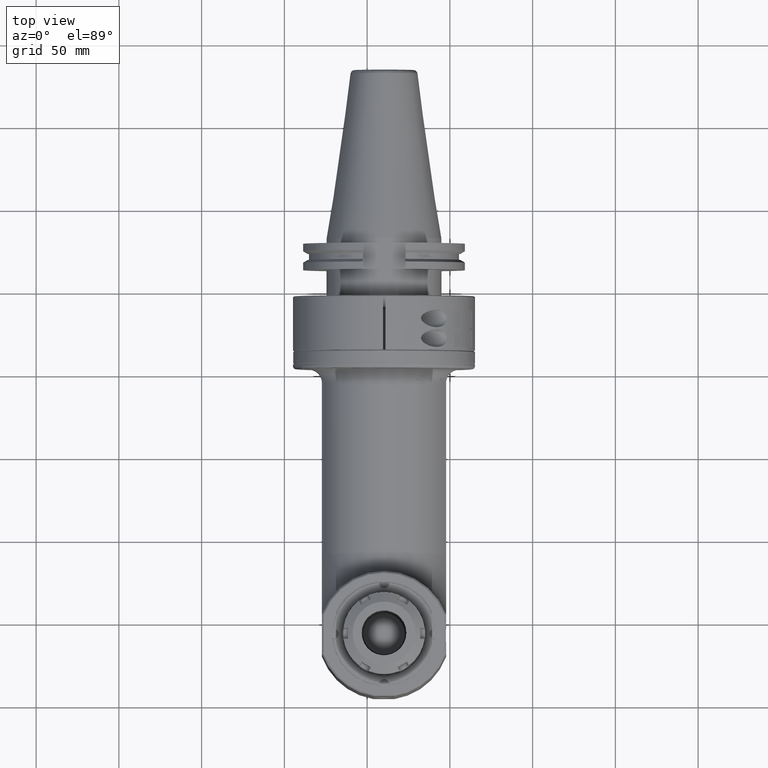
[diagram: clean part render]
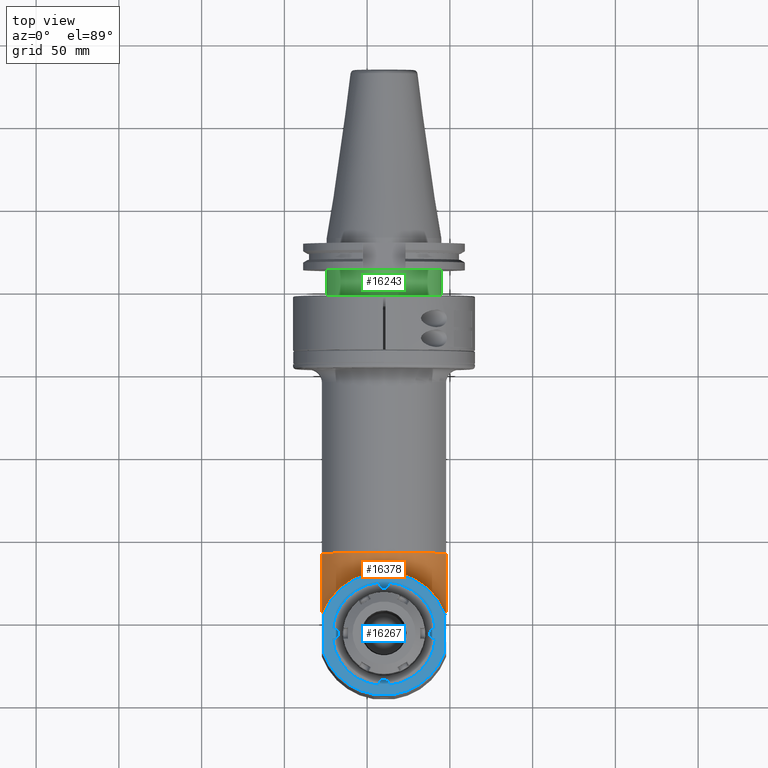
[diagram: same view with three faces highlighted in distinct colors, each labeled with its STEP entity id]
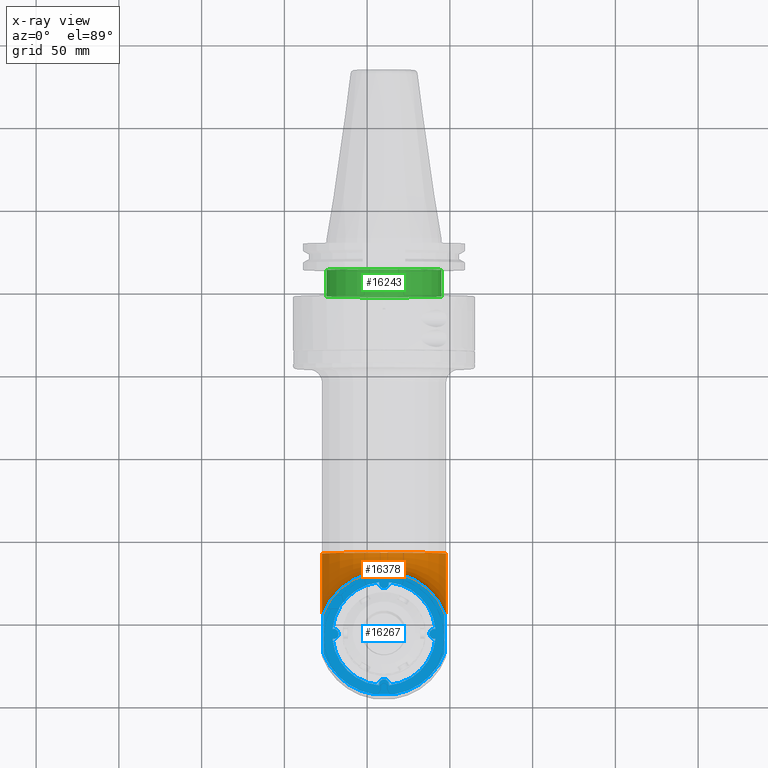
[diagram: x-ray of the same camera — body ghosted, the three highlighted faces saturated]
A machine part, top view with three faces highlighted in distinct colors.
The next image is the same camera in x-ray (body ghosted, the three faces saturated) — at least one of them is partly hidden behind the body in this view.
Their STEP definitions:

[orange] entity #16378 — the highlighted toroidal blend (fillet) surface has major radius 51.5 mm and minor (blend) radius 40 mm.
#126=TOROIDAL_SURFACE('',#17920,51.5,40.);
#1182=CIRCLE('',#17658,37.58058909292);
#1320=CIRCLE('',#17917,37.58058909292);
#1321=CIRCLE('',#17919,40.);
#1322=CIRCLE('',#17921,40.);
#2292=FACE_OUTER_BOUND('',#3293,.T.);
#3293=EDGE_LOOP('',(#13397,#13398,#13399,#13400));
#7144=VERTEX_POINT('',#26812);
#7145=VERTEX_POINT('',#26814);
#7352=VERTEX_POINT('',#27790);
#7353=VERTEX_POINT('',#27792);
#9165=EDGE_CURVE('',#7145,#7144,#1182,.T.);
#9469=EDGE_CURVE('',#7352,#7353,#1320,.T.);
#9479=EDGE_CURVE('',#7144,#7353,#1321,.T.);
#9480=EDGE_CURVE('',#7352,#7145,#1322,.T.);
#13397=ORIENTED_EDGE('',*,*,#9469,.F.);
#13398=ORIENTED_EDGE('',*,*,#9480,.T.);
#13399=ORIENTED_EDGE('',*,*,#9165,.T.);
#13400=ORIENTED_EDGE('',*,*,#9479,.T.);
#16378=ADVANCED_FACE('',(#2292),#126,.T.);
#17658=AXIS2_PLACEMENT_3D('',#26815,#20883,#20884);
#17917=AXIS2_PLACEMENT_3D('',#27793,#21532,#21533);
#17919=AXIS2_PLACEMENT_3D('',#27812,#21545,#21546);
#17920=AXIS2_PLACEMENT_3D('',#27813,#21547,#21548);
#17921=AXIS2_PLACEMENT_3D('',#27814,#21549,#21550);
#20883=DIRECTION('center_axis',(-1.,0.,0.));
#20884=DIRECTION('ref_axis',(0.,-2.609190007438E-14,-1.));
#21532=DIRECTION('center_axis',(-1.,0.,0.));
#21533=DIRECTION('ref_axis',(0.,0.,-1.));
#21545=DIRECTION('center_axis',(0.,0.,-1.));
#21546=DIRECTION('ref_axis',(-0.937499999999992,0.347985272676897,0.));
#21547=DIRECTION('center_axis',(-1.,0.,0.));
#21548=DIRECTION('ref_axis',(0.,1.,0.));
#21549=DIRECTION('center_axis',(0.,-1.,0.));
#21550=DIRECTION('ref_axis',(0.937499999999992,0.,0.347985272676897));
#26812=CARTESIAN_POINT('',(-37.5,11.91941090708,51.5));
#26814=CARTESIAN_POINT('',(-37.5,49.5,13.91941090708));
#26815=CARTESIAN_POINT('Origin',(-37.5,49.5,51.5));
#27790=CARTESIAN_POINT('',(37.5,49.5,13.91941090708));
#27792=CARTESIAN_POINT('',(37.5,11.91941090708,51.5));
#27793=CARTESIAN_POINT('Origin',(37.5,49.5,51.5));
#27812=CARTESIAN_POINT('Origin',(0.,-2.,51.5));
#27813=CARTESIAN_POINT('Origin',(0.,49.5,51.5));
#27814=CARTESIAN_POINT('Origin',(0.,49.5,0.));

[blue] entity #16267 — the highlighted planar face has unit normal (0, -0, 1).
#173=FACE_BOUND('',#3157,.T.);
#1184=CIRCLE('',#17662,38.99998535825);
#1186=CIRCLE('',#17665,38.99995481606);
#1187=CIRCLE('',#17666,38.99992611652);
#1188=CIRCLE('',#17667,31.25);
#1189=CIRCLE('',#17668,3.);
#1190=CIRCLE('',#17669,31.25);
#1191=CIRCLE('',#17670,3.);
#1192=CIRCLE('',#17671,31.25);
#1193=CIRCLE('',#17672,3.);
#1194=CIRCLE('',#17673,31.25);
#1195=CIRCLE('',#17674,3.);
#2181=FACE_OUTER_BOUND('',#3156,.T.);
#3156=EDGE_LOOP('',(#12824,#12825,#12826,#12827,#12828,#12829));
#3157=EDGE_LOOP('',(#12830,#12831,#12832,#12833,#12834,#12835,#12836,#12837,
#12838,#12839,#12840,#12841,#12842,#12843,#12844,#12845));
#4414=LINE('',#26830,#5736);
#4415=LINE('',#26844,#5737);
#4416=LINE('',#26848,#5738);
#4417=LINE('',#26854,#5739);
#4418=LINE('',#26858,#5740);
#4419=LINE('',#26862,#5741);
#4420=LINE('',#26866,#5742);
#4421=LINE('',#26870,#5743);
#4422=LINE('',#26874,#5744);
#4423=LINE('',#26878,#5745);
#4424=LINE('',#26881,#5746);
#5736=VECTOR('',#20893,10.);
#5737=VECTOR('',#20902,10.);
#5738=VECTOR('',#20905,10.);
#5739=VECTOR('',#20910,0.3126509297359);
#5740=VECTOR('',#20913,0.3126509297359);
#5741=VECTOR('',#20916,0.3126509297359);
#5742=VECTOR('',#20919,0.3126509297359);
#5743=VECTOR('',#20922,0.3126509297359);
#5744=VECTOR('',#20925,0.3126509297359);
#5745=VECTOR('',#20928,0.3126509297359);
#5746=VECTOR('',#20931,0.3126509297359);
#7149=VERTEX_POINT('',#26825);
#7150=VERTEX_POINT('',#26829);
#7151=VERTEX_POINT('',#26835);
#7153=VERTEX_POINT('',#26843);
#7154=VERTEX_POINT('',#26845);
#7155=VERTEX_POINT('',#26847);
#7156=VERTEX_POINT('',#26850);
#7157=VERTEX_POINT('',#26851);
#7158=VERTEX_POINT('',#26853);
#7159=VERTEX_POINT('',#26855);
#7160=VERTEX_POINT('',#26857);
#7161=VERTEX_POINT('',#26859);
#7162=VERTEX_POINT('',#26861);
#7163=VERTEX_POINT('',#26863);
#7164=VERTEX_POINT('',#26865);
#7165=VERTEX_POINT('',#26867);
#7166=VERTEX_POINT('',#26869);
#7167=VERTEX_POINT('',#26871);
#7168=VERTEX_POINT('',#26873);
#7169=VERTEX_POINT('',#26875);
#7170=VERTEX_POINT('',#26877);
#7171=VERTEX_POINT('',#26879);
#9172=EDGE_CURVE('',#7150,#7149,#4414,.T.);
#9174=EDGE_CURVE('',#7151,#7150,#1184,.T.);
#9177=EDGE_CURVE('',#7153,#7151,#4415,.T.);
#9178=EDGE_CURVE('',#7149,#7154,#1186,.T.);
#9179=EDGE_CURVE('',#7154,#7155,#4416,.T.);
#9180=EDGE_CURVE('',#7155,#7153,#1187,.T.);
#9181=EDGE_CURVE('',#7156,#7157,#1188,.T.);
#9182=EDGE_CURVE('',#7156,#7158,#4417,.T.);
#9183=EDGE_CURVE('',#7158,#7159,#1189,.T.);
#9184=EDGE_CURVE('',#7160,#7159,#4418,.T.);
#9185=EDGE_CURVE('',#7161,#7160,#1190,.T.);
#9186=EDGE_CURVE('',#7161,#7162,#4419,.T.);
#9187=EDGE_CURVE('',#7162,#7163,#1191,.T.);
#9188=EDGE_CURVE('',#7164,#7163,#4420,.T.);
#9189=EDGE_CURVE('',#7165,#7164,#1192,.T.);
#9190=EDGE_CURVE('',#7165,#7166,#4421,.T.);
#9191=EDGE_CURVE('',#7166,#7167,#1193,.T.);
#9192=EDGE_CURVE('',#7168,#7167,#4422,.T.);
#9193=EDGE_CURVE('',#7169,#7168,#1194,.T.);
#9194=EDGE_CURVE('',#7169,#7170,#4423,.T.);
#9195=EDGE_CURVE('',#7170,#7171,#1195,.T.);
#9196=EDGE_CURVE('',#7157,#7171,#4424,.T.);
#12824=ORIENTED_EDGE('',*,*,#9177,.T.);
#12825=ORIENTED_EDGE('',*,*,#9174,.T.);
#12826=ORIENTED_EDGE('',*,*,#9172,.T.);
#12827=ORIENTED_EDGE('',*,*,#9178,.T.);
#12828=ORIENTED_EDGE('',*,*,#9179,.T.);
#12829=ORIENTED_EDGE('',*,*,#9180,.T.);
#12830=ORIENTED_EDGE('',*,*,#9181,.F.);
#12831=ORIENTED_EDGE('',*,*,#9182,.T.);
#12832=ORIENTED_EDGE('',*,*,#9183,.T.);
#12833=ORIENTED_EDGE('',*,*,#9184,.F.);
#12834=ORIENTED_EDGE('',*,*,#9185,.F.);
#12835=ORIENTED_EDGE('',*,*,#9186,.T.);
#12836=ORIENTED_EDGE('',*,*,#9187,.T.);
#12837=ORIENTED_EDGE('',*,*,#9188,.F.);
#12838=ORIENTED_EDGE('',*,*,#9189,.F.);
#12839=ORIENTED_EDGE('',*,*,#9190,.T.);
#12840=ORIENTED_EDGE('',*,*,#9191,.T.);
#12841=ORIENTED_EDGE('',*,*,#9192,.F.);
#12842=ORIENTED_EDGE('',*,*,#9193,.F.);
#12843=ORIENTED_EDGE('',*,*,#9194,.T.);
#12844=ORIENTED_EDGE('',*,*,#9195,.T.);
#12845=ORIENTED_EDGE('',*,*,#9196,.F.);
#15614=PLANE('',#17664);
#16267=ADVANCED_FACE('',(#2181,#173),#15614,.T.);
#17662=AXIS2_PLACEMENT_3D('',#26836,#20896,#20897);
#17664=AXIS2_PLACEMENT_3D('',#26842,#20900,#20901);
#17665=AXIS2_PLACEMENT_3D('',#26846,#20903,#20904);
#17666=AXIS2_PLACEMENT_3D('',#26849,#20906,#20907);
#17667=AXIS2_PLACEMENT_3D('',#26852,#20908,#20909);
#17668=AXIS2_PLACEMENT_3D('',#26856,#20911,#20912);
#17669=AXIS2_PLACEMENT_3D('',#26860,#20914,#20915);
#17670=AXIS2_PLACEMENT_3D('',#26864,#20917,#20918);
#17671=AXIS2_PLACEMENT_3D('',#26868,#20920,#20921);
#17672=AXIS2_PLACEMENT_3D('',#26872,#20923,#20924);
#17673=AXIS2_PLACEMENT_3D('',#26876,#20926,#20927);
#17674=AXIS2_PLACEMENT_3D('',#26880,#20929,#20930);
#20893=DIRECTION('',(0.,-1.,0.));
#20896=DIRECTION('center_axis',(0.,0.,1.));
#20897=DIRECTION('ref_axis',(0.935897578689721,0.352272227407608,0.));
#20900=DIRECTION('center_axis',(0.,0.,1.));
#20901=DIRECTION('ref_axis',(-1.,0.,0.));
#20902=DIRECTION('',(0.,1.,0.));
#20903=DIRECTION('center_axis',(0.,0.,1.));
#20904=DIRECTION('ref_axis',(-0.935897875535682,-0.352271438762493,0.));
#20905=DIRECTION('',(1.,0.,0.));
#20906=DIRECTION('center_axis',(0.,0.,1.));
#20907=DIRECTION('ref_axis',(0.159610348917798,-0.98718009325469,0.));
#20908=DIRECTION('center_axis',(0.,0.,1.));
#20909=DIRECTION('ref_axis',(-0.994753306406909,-0.102302782916801,0.));
#20910=DIRECTION('',(0.713715442061099,0.700435769905799,0.));
#20911=DIRECTION('center_axis',(0.,0.,1.));
#20912=DIRECTION('ref_axis',(-0.120965676229499,-0.992656690489889,0.));
#20913=DIRECTION('',(0.713715442061099,-0.700435769905799,0.));
#20914=DIRECTION('center_axis',(0.,0.,1.));
#20915=DIRECTION('ref_axis',(-0.102302782916801,0.994753306406909,0.));
#20916=DIRECTION('',(0.700435769905799,-0.713715442061099,0.));
#20917=DIRECTION('center_axis',(0.,0.,1.));
#20918=DIRECTION('ref_axis',(-0.992656690489889,0.120965676229499,0.));
#20919=DIRECTION('',(-0.700435769905799,-0.713715442061099,0.));
#20920=DIRECTION('center_axis',(0.,0.,1.));
#20921=DIRECTION('ref_axis',(0.994753306406909,0.102302782916801,0.));
#20922=DIRECTION('',(-0.713715442061099,-0.700435769905799,-4.54527825239599E-14));
#20923=DIRECTION('center_axis',(0.,0.,1.));
#20924=DIRECTION('ref_axis',(0.120965676229499,0.992656690489889,0.));
#20925=DIRECTION('',(-0.713715442061099,0.700435769905799,0.));
#20926=DIRECTION('center_axis',(0.,0.,1.));
#20927=DIRECTION('ref_axis',(0.102302782916801,-0.994753306406909,0.));
#20928=DIRECTION('',(-0.700435769905799,0.713715442061099,0.));
#20929=DIRECTION('center_axis',(0.,0.,1.));
#20930=DIRECTION('ref_axis',(0.992656690489889,-0.120965676229499,0.));
#20931=DIRECTION('',(0.700435769905799,0.713715442061099,4.54527825239599E-14));
#26825=CARTESIAN_POINT('',(-36.499999997557,-11.7385034128235,66.0000000000006));
#26829=CARTESIAN_POINT('',(-36.4999999992175,11.7385901045872,65.9999999999998));
#26830=CARTESIAN_POINT('',(-36.5,86.,66.));
#26835=CARTESIAN_POINT('',(36.4999999992105,11.738590104622,65.9999999999998));
#26836=CARTESIAN_POINT('Origin',(-6.33715292456E-13,-2.000000000001,66.));
#26842=CARTESIAN_POINT('Origin',(0.,172.,66.));
#26843=CARTESIAN_POINT('',(36.4999706966742,-11.7386066025122,65.9999922232674));
#26844=CARTESIAN_POINT('',(36.5,86.,66.));
#26845=CARTESIAN_POINT('',(-6.22489540069694,-36.4999869906336,65.9999958783133));
#26846=CARTESIAN_POINT('Origin',(-5.217160027319E-12,1.999999999997,66.));
#26847=CARTESIAN_POINT('',(6.22489959894417,-36.4999749663302,65.9999859062629));
#26848=CARTESIAN_POINT('',(-2.8421704430405E-14,-36.5,66.));
#26849=CARTESIAN_POINT('Origin',(3.907985146681E-13,1.999999999999,66.));
#26850=CARTESIAN_POINT('',(-31.08604082522,-3.196961966151,66.));
#26851=CARTESIAN_POINT('',(-3.196961966151,-31.08604082522,66.));
#26852=CARTESIAN_POINT('Origin',(0.,0.,66.));
#26853=CARTESIAN_POINT('',(-30.86289702869,-2.97797007147,66.));
#26854=CARTESIAN_POINT('',(-31.08604082522,-3.196961966151,66.));
#26855=CARTESIAN_POINT('',(-30.86289702869,2.97797007147,66.));
#26856=CARTESIAN_POINT('Origin',(-30.5,0.,66.));
#26857=CARTESIAN_POINT('',(-31.08604082522,3.196961966151,66.));
#26858=CARTESIAN_POINT('',(-31.08604082522,3.196961966151,66.));
#26859=CARTESIAN_POINT('',(-3.196961966151,31.08604082522,66.));
#26860=CARTESIAN_POINT('Origin',(0.,0.,66.));
#26861=CARTESIAN_POINT('',(-2.97797007147,30.86289702869,66.));
#26862=CARTESIAN_POINT('',(-3.196961966151,31.08604082522,66.));
#26863=CARTESIAN_POINT('',(2.97797007147,30.86289702869,66.));
#26864=CARTESIAN_POINT('Origin',(0.,30.5,66.));
#26865=CARTESIAN_POINT('',(3.196961966151,31.08604082522,66.));
#26866=CARTESIAN_POINT('',(3.196961966151,31.08604082522,66.));
#26867=CARTESIAN_POINT('',(31.08604082522,3.196961966151,66.));
#26868=CARTESIAN_POINT('Origin',(0.,0.,66.));
#26869=CARTESIAN_POINT('',(30.86289702869,2.97797007147,66.));
#26870=CARTESIAN_POINT('',(31.08604082522,3.196961966151,66.));
#26871=CARTESIAN_POINT('',(30.86289702869,-2.97797007147,66.));
#26872=CARTESIAN_POINT('Origin',(30.5,0.,66.));
#26873=CARTESIAN_POINT('',(31.08604082522,-3.196961966151,66.));
#26874=CARTESIAN_POINT('',(31.08604082522,-3.196961966151,66.));
#26875=CARTESIAN_POINT('',(3.196961966151,-31.08604082522,66.));
#26876=CARTESIAN_POINT('Origin',(0.,0.,66.));
#26877=CARTESIAN_POINT('',(2.97797007147,-30.86289702869,66.));
#26878=CARTESIAN_POINT('',(3.196961966151,-31.08604082522,66.));
#26879=CARTESIAN_POINT('',(-2.97797007147,-30.86289702869,66.));
#26880=CARTESIAN_POINT('Origin',(0.,-30.5,66.));
#26881=CARTESIAN_POINT('',(-3.196961966151,-31.08604082522,66.));

[green] entity #16243 — the highlighted cylindrical surface (bore or boss wall) has radius 35 mm, axis along (0, -1, 0).
#1145=CIRCLE('',#17581,35.);
#1158=CIRCLE('',#17612,35.);
#1641=CYLINDRICAL_SURFACE('',#17611,35.);
#2157=FACE_OUTER_BOUND('',#3128,.T.);
#3128=EDGE_LOOP('',(#12716,#12717,#12718,#12719));
#4387=LINE('',#26433,#5709);
#5709=VECTOR('',#20770,35.);
#7090=VERTEX_POINT('',#26363);
#7103=VERTEX_POINT('',#26431);
#9081=EDGE_CURVE('',#7090,#7090,#1145,.T.);
#9110=EDGE_CURVE('',#7103,#7103,#1158,.T.);
#9111=EDGE_CURVE('',#7103,#7090,#4387,.T.);
#12716=ORIENTED_EDGE('',*,*,#9110,.T.);
#12717=ORIENTED_EDGE('',*,*,#9111,.T.);
#12718=ORIENTED_EDGE('',*,*,#9081,.T.);
#12719=ORIENTED_EDGE('',*,*,#9111,.F.);
#16243=ADVANCED_FACE('',(#2157),#1641,.T.);
#17581=AXIS2_PLACEMENT_3D('',#26364,#20694,#20695);
#17611=AXIS2_PLACEMENT_3D('',#26430,#20766,#20767);
#17612=AXIS2_PLACEMENT_3D('',#26432,#20768,#20769);
#20694=DIRECTION('center_axis',(0.,-1.,0.));
#20695=DIRECTION('ref_axis',(0.,0.,1.));
#20766=DIRECTION('center_axis',(0.,-1.,0.));
#20767=DIRECTION('ref_axis',(0.,0.,1.));
#20768=DIRECTION('center_axis',(0.,1.,0.));
#20769=DIRECTION('ref_axis',(0.,0.,-1.));
#20770=DIRECTION('',(0.,1.,0.));
#26363=CARTESIAN_POINT('',(4.28626379701574E-15,48.9,-35.));
#26364=CARTESIAN_POINT('Origin',(0.,48.9,-2.65337952111E-15));
#26430=CARTESIAN_POINT('Origin',(0.,49.695,-2.65337952111E-15));
#26431=CARTESIAN_POINT('',(4.28626379701574E-15,33.,-35.));
#26432=CARTESIAN_POINT('Origin',(0.,33.,-2.65337952111E-15));
#26433=CARTESIAN_POINT('',(4.28626379701574E-15,49.695,-35.));